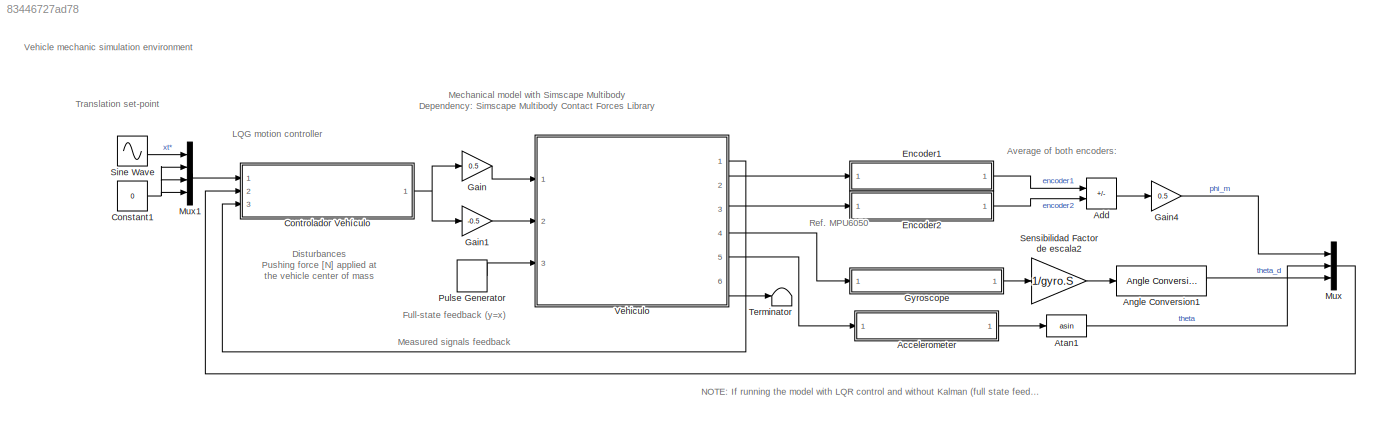
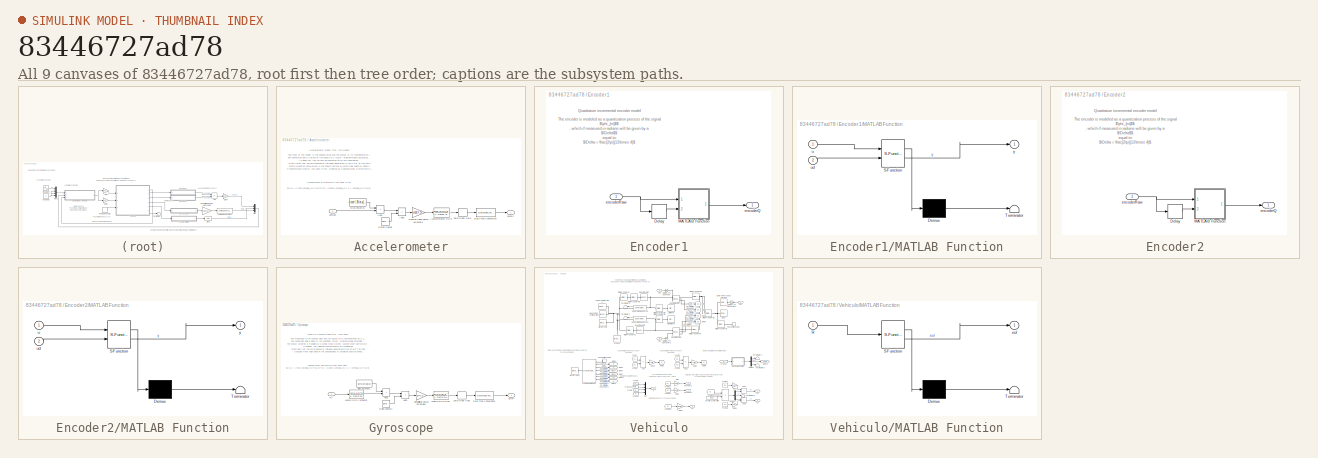
[diagram: thumbnail index - all 9 canvases of the model, root first then tree order]
MODEL slx_83446727ad78
KIND model
CONFIG AbsTol = auto
CONFIG EnableMultiTasking = off
CONFIG FixedStep = auto
CONFIG MaxStep = auto
CONFIG MinStep = auto
CONFIG RelTol = 1e-3
CONFIG SampleTimeConstraint = Unconstrained
CONFIG SolverName = VariableStepAuto
CONFIG StartTime = 0.0
CONFIG StopTime = 18
BLOCK [SubSystem] Accelerometer
  Commented = on
  NameLocation = top
  Ports = [1, 1]
  RequestExecContextInheritance = off
BLOCK [TransferFcn] Accelerometer/Accelerometer DLPF
  Commented = through
  Denominator = [1, 2*accel.DLPF_zeta*accel.DLPF_w, accel.DLPF_w^2]
  Numerator = [accel.DLPF_w^2]
BLOCK [Sum] Accelerometer/Add1
  IconShape = rectangular
  Ports = [2, 1]
BLOCK [Sum] Accelerometer/Add4
  IconShape = rectangular
  Ports = [2, 1]
BLOCK [Constant] Accelerometer/Bias estatico
  Value = accel.Bias(1)
BLOCK [DataTypeConversion] Accelerometer/Data Type Conversion
  Commented = through
  OutDataTypeStr = int16
  RndMeth = Floor
BLOCK [Reference] Accelerometer/Ruido Sensor  REF=simulink/Sources/Band-Limited
White Noise
  Ports = [0, 1]
  SourceBlock = simulink/Sources/Band-Limited\nWhite Noise
  SourceProductBaseCode = SL
  SourceType = Band-Limited White Noise.
BLOCK [Gain] Accelerometer/Sensibilidad Factor de escala
  Gain = accel.S
  NameLocation = top
BLOCK [ZeroOrderHold] Accelerometer/Zero-Order Hold
  Commented = through
  SampleTime = accel.Fs
BLOCK [Outport] Accelerometer/accelX
BLOCK [Inport] Accelerometer/axRaw
BLOCK [Sum] Add
  Commented = on
  IconShape = rectangular
  Inputs = +-
  Ports = [2, 1]
BLOCK [Reference] Angle Conversion1  REF=aerolibconvert2/Angle Conversion
  Commented = on
  Ports = [1, 1]
  SourceBlock = aerolibconvert2/Angle Conversion
  SourceProductBaseCode = AE
  SourceType = Angle Conversion
BLOCK [Trigonometry] Atan1
  Commented = on
  Operator = asin
  Ports = [1, 1]
BLOCK [Constant] Constant1
  Value = 0
BLOCK [ModelReference] Controlador Vehículo
  ModelNameDialog = MotionController.slx
  ModelReferenceVersion = 1.31
  Ports = [3, 1]
BLOCK [SubSystem] Encoder1
  Commented = on
  NameLocation = top
  Ports = [1, 1]
  RequestExecContextInheritance = off
BLOCK [Delay] Encoder1/Delay
  DelayLength = 1
  InputPortMap = u0
  Ports = [1, 1]
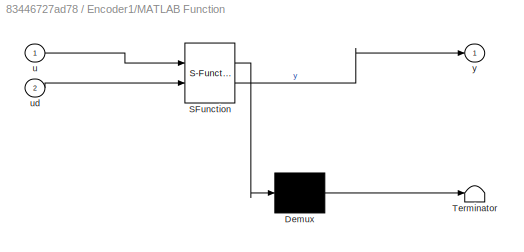
BLOCK [SubSystem] Encoder1/MATLAB Function
  ErrorFcn = Stateflow.Translate.translate
  PermitHierarchicalResolution = ExplicitOnly
  Ports = [2, 1]
  RequestExecContextInheritance = off
  SFBlockType = MATLAB Function
  TreatAsAtomicUnit = on
BLOCK [Demux] Encoder1/MATLAB Function/ Demux 
  Outputs = 1
  Ports = [1, 1]
BLOCK [S-Function] Encoder1/MATLAB Function/ SFunction 
  EnableBusSupport = on
  FunctionName = sf_sfun
  Parameters = QuadratureEncoder
  PortCounts = [2 2]
  Ports = [2, 2]
  SFcnIsStateOwnerBlock = off
  SFunctionDeploymentMode = off
  Tag = Stateflow S-Function 5
BLOCK [Terminator] Encoder1/MATLAB Function/ Terminator 
BLOCK [Inport] Encoder1/MATLAB Function/u
BLOCK [Inport] Encoder1/MATLAB Function/ud
  Port = 2
BLOCK [Outport] Encoder1/MATLAB Function/y
BLOCK [Outport] Encoder1/encoderQ
BLOCK [Inport] Encoder1/encoderRaw
BLOCK [SubSystem] Encoder2
  Commented = on
  NameLocation = top
  Ports = [1, 1]
  RequestExecContextInheritance = off
BLOCK [Delay] Encoder2/Delay
  DelayLength = 1
  InputPortMap = u0
  Ports = [1, 1]
BLOCK [SubSystem] Encoder2/MATLAB Function
  ErrorFcn = Stateflow.Translate.translate
  PermitHierarchicalResolution = ExplicitOnly
  Ports = [2, 1]
  RequestExecContextInheritance = off
  SFBlockType = MATLAB Function
  TreatAsAtomicUnit = on
BLOCK [Demux] Encoder2/MATLAB Function/ Demux 
  Outputs = 1
  Ports = [1, 1]
BLOCK [S-Function] Encoder2/MATLAB Function/ SFunction 
  EnableBusSupport = on
  FunctionName = sf_sfun
  Parameters = QuadratureEncoder
  PortCounts = [2 2]
  Ports = [2, 2]
  SFcnIsStateOwnerBlock = off
  SFunctionDeploymentMode = off
  Tag = Stateflow S-Function 1
BLOCK [Terminator] Encoder2/MATLAB Function/ Terminator 
BLOCK [Inport] Encoder2/MATLAB Function/u
BLOCK [Inport] Encoder2/MATLAB Function/ud
  Port = 2
BLOCK [Outport] Encoder2/MATLAB Function/y
BLOCK [Outport] Encoder2/encoderQ
BLOCK [Inport] Encoder2/encoderRaw
BLOCK [Gain] Gain
  Gain = 0.5
BLOCK [Gain] Gain1
  Gain = -0.5
BLOCK [Gain] Gain4
  Commented = on
  Gain = 0.5
BLOCK [SubSystem] Gyroscope
  Commented = on
  NameLocation = top
  Ports = [1, 1]
  RequestExecContextInheritance = off
BLOCK [Sum] Gyroscope/Add2
  IconShape = rectangular
  Ports = [2, 1]
BLOCK [Sum] Gyroscope/Add5
  IconShape = rectangular
  Ports = [2, 1]
BLOCK [Constant] Gyroscope/Bias estatico1
  Value = gyro.Bias(2)
BLOCK [DataTypeConversion] Gyroscope/Data Type Conversion1
  Commented = through
  OutDataTypeStr = int16
  RndMeth = Floor
BLOCK [TransferFcn] Gyroscope/MEMS Gyro DLPF
  Commented = through
  Denominator = [1, 2*gyro.DLPF_zeta*gyro.DLPF_w, gyro.DLPF_w^2]
  Numerator = [gyro.DLPF_w^2]
BLOCK [TransferFcn] Gyroscope/MEMS Gyro Y dynamic
  Denominator = [1, 2*gyro.zeta*gyro.wnY, gyro.wnY^2]
  Numerator = [gyro.wnY^2]
BLOCK [Reference] Gyroscope/Ruido Sensor1  REF=simulink/Sources/Band-Limited
White Noise
  Ports = [0, 1]
  SourceBlock = simulink/Sources/Band-Limited\nWhite Noise
  SourceProductBaseCode = SL
  SourceType = Band-Limited White Noise.
BLOCK [Gain] Gyroscope/Sensibilidad Factor de escala1
  Gain = gyro.S
BLOCK [ZeroOrderHold] Gyroscope/Zero-Order Hold
  Commented = through
  SampleTime = gyro.Ts
BLOCK [Outport] Gyroscope/gyroY
BLOCK [Inport] Gyroscope/wy
BLOCK [Mux] Mux
  Commented = on
  DisplayOption = bar
  Inputs = 3
  Ports = [3, 1]
BLOCK [Mux] Mux1
  DisplayOption = bar
  Ports = [4, 1]
BLOCK [DiscretePulseGenerator] Pulse Generator
  Amplitude = 0
  Period = 10
  Ports = [0, 1]
  PulseType = Time based
  PulseWidth = 15
BLOCK [Gain] Sensibilidad Factor de escala2
  Commented = on
  Gain = 1/gyro.S
  OutDataTypeStr = double
BLOCK [Sin] Sine Wave
  Amplitude = 0.5
  Frequency = 2*pi/15
  Ports = [0, 1]
  SampleTime = 0
BLOCK [Terminator] Terminator
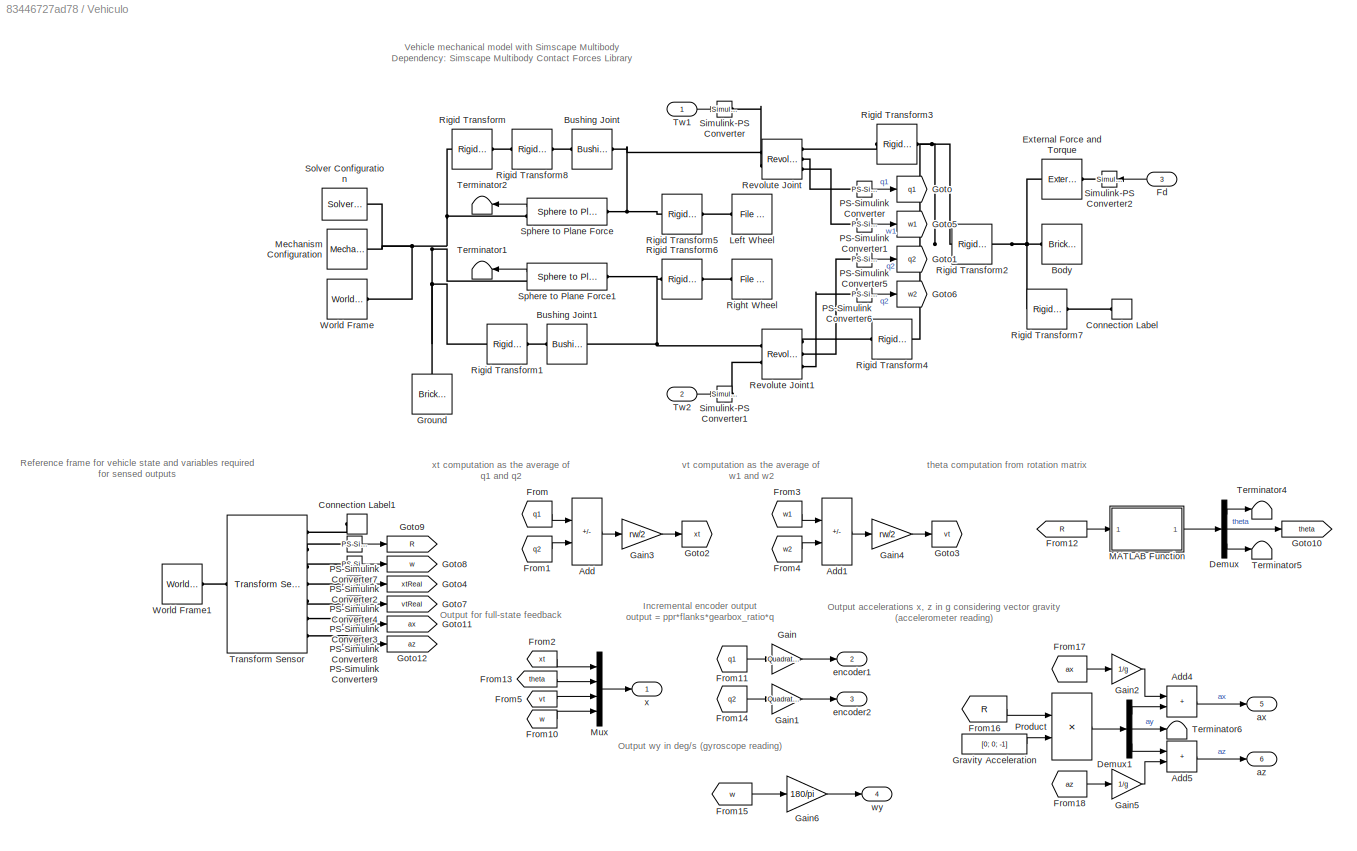
BLOCK [SubSystem] Vehiculo
  Ports = [3, 6]
  RequestExecContextInheritance = off
BLOCK [Sum] Vehiculo/Add
  IconShape = rectangular
  Inputs = +-
  Ports = [2, 1]
BLOCK [Sum] Vehiculo/Add1
  IconShape = rectangular
  Inputs = +-
  Ports = [2, 1]
BLOCK [Sum] Vehiculo/Add4
  IconShape = rectangular
  Ports = [2, 1]
BLOCK [Sum] Vehiculo/Add5
  IconShape = rectangular
  Ports = [2, 1]
BLOCK [Reference] Vehiculo/Body  REF=sm_lib/Body Elements/Brick Solid
  Ports = [0, 0, 0, 0, 0, 0, 1]
  SourceBlock = sm_lib/Body Elements/Brick Solid
  SourceProductBaseCode = MS
  SourceType = Brick Solid
BLOCK [Reference] Vehiculo/Bushing Joint  REF=sm_lib/Joints/Bushing Joint
  Ports = [0, 0, 0, 0, 0, 1, 1]
  SourceBlock = sm_lib/Joints/Bushing Joint
  SourceProductBaseCode = MS
  SourceType = Bushing Joint
BLOCK [Reference] Vehiculo/Bushing Joint1  REF=sm_lib/Joints/Bushing Joint
  Ports = [0, 0, 0, 0, 0, 1, 1]
  SourceBlock = sm_lib/Joints/Bushing Joint
  SourceProductBaseCode = MS
  SourceType = Bushing Joint
BLOCK [ConnectionLabel] Vehiculo/Connection Label
  Label = refState
  Ports = [0, 0, 0, 0, 0, 1]
BLOCK [ConnectionLabel] Vehiculo/Connection Label1
  Label = refState
  Ports = [0, 0, 0, 0, 0, 1]
BLOCK [Demux] Vehiculo/Demux
  Outputs = 3
  Ports = [1, 3]
BLOCK [Demux] Vehiculo/Demux1
  Outputs = 3
  Ports = [1, 3]
BLOCK [Reference] Vehiculo/External Force and Torque  REF=sm_lib/Forces and
Torques/External Force
and Torque
  Ports = [0, 0, 0, 0, 0, 1, 1]
  SourceBlock = sm_lib/Forces and\nTorques/External Force\nand Torque
  SourceProductBaseCode = MS
  SourceType = External Force\nand Torque
BLOCK [Inport] Vehiculo/Fd
  Port = 3
BLOCK [From] Vehiculo/From
  GotoTag = q1
BLOCK [From] Vehiculo/From1
  GotoTag = q2
BLOCK [From] Vehiculo/From10
  GotoTag = w
BLOCK [From] Vehiculo/From11
  GotoTag = q1
BLOCK [From] Vehiculo/From12
  GotoTag = R
BLOCK [From] Vehiculo/From13
  GotoTag = theta
BLOCK [From] Vehiculo/From14
  GotoTag = q2
BLOCK [From] Vehiculo/From15
  GotoTag = w
BLOCK [From] Vehiculo/From16
  GotoTag = R
BLOCK [From] Vehiculo/From17
  GotoTag = ax
BLOCK [From] Vehiculo/From18
  GotoTag = az
BLOCK [From] Vehiculo/From2
  GotoTag = xt
BLOCK [From] Vehiculo/From3
  GotoTag = w1
BLOCK [From] Vehiculo/From4
  GotoTag = w2
BLOCK [From] Vehiculo/From5
  GotoTag = vt
BLOCK [Gain] Vehiculo/Gain
  Gain = QuadratureEncoder.PPR*QuadratureEncoder.ResolutionMult*MotorParameters.gearRatio
BLOCK [Gain] Vehiculo/Gain1
  Gain = QuadratureEncoder.PPR*QuadratureEncoder.ResolutionMult*MotorParameters.gearRatio
BLOCK [Gain] Vehiculo/Gain2
  Gain = 1/g
BLOCK [Gain] Vehiculo/Gain3
  Gain = rw/2
BLOCK [Gain] Vehiculo/Gain4
  Gain = rw/2
BLOCK [Gain] Vehiculo/Gain5
  Gain = 1/g
BLOCK [Gain] Vehiculo/Gain6
  Gain = 180/pi
BLOCK [Goto] Vehiculo/Goto
  GotoTag = q1
BLOCK [Goto] Vehiculo/Goto1
  GotoTag = q2
BLOCK [Goto] Vehiculo/Goto10
  GotoTag = theta
BLOCK [Goto] Vehiculo/Goto11
  GotoTag = ax
BLOCK [Goto] Vehiculo/Goto12
  GotoTag = az
BLOCK [Goto] Vehiculo/Goto2
  GotoTag = xt
BLOCK [Goto] Vehiculo/Goto3
  GotoTag = vt
BLOCK [Goto] Vehiculo/Goto4
  GotoTag = xtReal
BLOCK [Goto] Vehiculo/Goto5
  GotoTag = w1
BLOCK [Goto] Vehiculo/Goto6
  GotoTag = w2
BLOCK [Goto] Vehiculo/Goto7
  GotoTag = vtReal
BLOCK [Goto] Vehiculo/Goto8
  GotoTag = w
BLOCK [Goto] Vehiculo/Goto9
  GotoTag = R
BLOCK [Constant] Vehiculo/Gravity Acceleration
  Value = [0; 0; -1]
BLOCK [Reference] Vehiculo/Ground  REF=sm_lib/Body Elements/Brick Solid
  NameLocation = right
  Ports = [0, 0, 0, 0, 0, 0, 1]
  SourceBlock = sm_lib/Body Elements/Brick Solid
  SourceProductBaseCode = MS
  SourceType = Brick Solid
BLOCK [Reference] Vehiculo/Left Wheel  REF=sm_lib/Body Elements/File Solid
  Ports = [0, 0, 0, 0, 0, 0, 1]
  SourceBlock = sm_lib/Body Elements/File Solid
  SourceProductBaseCode = MS
  SourceType = File Solid
BLOCK [SubSystem] Vehiculo/MATLAB Function
  ErrorFcn = Stateflow.Translate.translate
  PermitHierarchicalResolution = ExplicitOnly
  Ports = [1, 1]
  RequestExecContextInheritance = off
  SFBlockType = MATLAB Function
  TreatAsAtomicUnit = on
BLOCK [Demux] Vehiculo/MATLAB Function/ Demux 
  Outputs = 1
  Ports = [1, 1]
BLOCK [S-Function] Vehiculo/MATLAB Function/ SFunction 
  EnableBusSupport = on
  FunctionName = sf_sfun
  PortCounts = [1 2]
  Ports = [1, 2]
  SFcnIsStateOwnerBlock = off
  SFunctionDeploymentMode = off
  Tag = Stateflow S-Function 2
BLOCK [Terminator] Vehiculo/MATLAB Function/ Terminator 
BLOCK [Inport] Vehiculo/MATLAB Function/R
BLOCK [Outport] Vehiculo/MATLAB Function/eul
BLOCK [Reference] Vehiculo/Mechanism Configuration  REF=sm_lib/Utilities/Mechanism
Configuration
  Ports = [0, 0, 0, 0, 0, 0, 1]
  SourceBlock = sm_lib/Utilities/Mechanism\nConfiguration
  SourceProductBaseCode = MS
  SourceType = Mechanism\nConfiguration
BLOCK [Mux] Vehiculo/Mux
  DisplayOption = bar
  Ports = [4, 1]
BLOCK [Reference] Vehiculo/PS-Simulink Converter  REF=nesl_utility/PS-Simulink
Converter
  Ports = [0, 1, 0, 0, 0, 1]
  SourceBlock = nesl_utility/PS-Simulink\nConverter
  SourceProductBaseCode = SS
  SourceType = PS-Simulink\nConverter
BLOCK [Reference] Vehiculo/PS-Simulink Converter1  REF=nesl_utility/PS-Simulink
Converter
  Ports = [0, 1, 0, 0, 0, 1]
  SourceBlock = nesl_utility/PS-Simulink\nConverter
  SourceProductBaseCode = SS
  SourceType = PS-Simulink\nConverter
BLOCK [Reference] Vehiculo/PS-Simulink Converter2  REF=nesl_utility/PS-Simulink
Converter
  Ports = [0, 1, 0, 0, 0, 1]
  SourceBlock = nesl_utility/PS-Simulink\nConverter
  SourceProductBaseCode = SS
  SourceType = PS-Simulink\nConverter
BLOCK [Reference] Vehiculo/PS-Simulink Converter3  REF=nesl_utility/PS-Simulink
Converter
  Ports = [0, 1, 0, 0, 0, 1]
  SourceBlock = nesl_utility/PS-Simulink\nConverter
  SourceProductBaseCode = SS
  SourceType = PS-Simulink\nConverter
BLOCK [Reference] Vehiculo/PS-Simulink Converter4  REF=nesl_utility/PS-Simulink
Converter
  Ports = [0, 1, 0, 0, 0, 1]
  SourceBlock = nesl_utility/PS-Simulink\nConverter
  SourceProductBaseCode = SS
  SourceType = PS-Simulink\nConverter
BLOCK [Reference] Vehiculo/PS-Simulink Converter5  REF=nesl_utility/PS-Simulink
Converter
  Ports = [0, 1, 0, 0, 0, 1]
  SourceBlock = nesl_utility/PS-Simulink\nConverter
  SourceProductBaseCode = SS
  SourceType = PS-Simulink\nConverter
BLOCK [Reference] Vehiculo/PS-Simulink Converter6  REF=nesl_utility/PS-Simulink
Converter
  Ports = [0, 1, 0, 0, 0, 1]
  SourceBlock = nesl_utility/PS-Simulink\nConverter
  SourceProductBaseCode = SS
  SourceType = PS-Simulink\nConverter
BLOCK [Reference] Vehiculo/PS-Simulink Converter7  REF=nesl_utility/PS-Simulink
Converter
  Ports = [0, 1, 0, 0, 0, 1]
  SourceBlock = nesl_utility/PS-Simulink\nConverter
  SourceProductBaseCode = SS
  SourceType = PS-Simulink\nConverter
BLOCK [Reference] Vehiculo/PS-Simulink Converter8  REF=nesl_utility/PS-Simulink
Converter
  Ports = [0, 1, 0, 0, 0, 1]
  SourceBlock = nesl_utility/PS-Simulink\nConverter
  SourceProductBaseCode = SS
  SourceType = PS-Simulink\nConverter
BLOCK [Reference] Vehiculo/PS-Simulink Converter9  REF=nesl_utility/PS-Simulink
Converter
  Ports = [0, 1, 0, 0, 0, 1]
  SourceBlock = nesl_utility/PS-Simulink\nConverter
  SourceProductBaseCode = SS
  SourceType = PS-Simulink\nConverter
BLOCK [Product] Vehiculo/Product
  Multiplication = Matrix(*)
  Ports = [2, 1]
BLOCK [Reference] Vehiculo/Revolute Joint  REF=sm_lib/Joints/Revolute Joint
  Ports = [0, 0, 0, 0, 0, 2, 3]
  SourceBlock = sm_lib/Joints/Revolute Joint
  SourceProductBaseCode = MS
  SourceType = Revolute Joint
BLOCK [Reference] Vehiculo/Revolute Joint1  REF=sm_lib/Joints/Revolute Joint
  Ports = [0, 0, 0, 0, 0, 2, 3]
  SourceBlock = sm_lib/Joints/Revolute Joint
  SourceProductBaseCode = MS
  SourceType = Revolute Joint
BLOCK [Reference] Vehiculo/Right Wheel  REF=sm_lib/Body Elements/File Solid
  Ports = [0, 0, 0, 0, 0, 0, 1]
  SourceBlock = sm_lib/Body Elements/File Solid
  SourceProductBaseCode = MS
  SourceType = File Solid
BLOCK [Reference] Vehiculo/Rigid Transform  REF=sm_lib/Frames and
Transforms/Rigid
Transform
  Ports = [0, 0, 0, 0, 0, 1, 1]
  SourceBlock = sm_lib/Frames and\nTransforms/Rigid\nTransform
  SourceProductBaseCode = MS
  SourceType = Rigid\nTransform
BLOCK [Reference] Vehiculo/Rigid Transform1  REF=sm_lib/Frames and
Transforms/Rigid
Transform
  Ports = [0, 0, 0, 0, 0, 1, 1]
  SourceBlock = sm_lib/Frames and\nTransforms/Rigid\nTransform
  SourceProductBaseCode = MS
  SourceType = Rigid\nTransform
BLOCK [Reference] Vehiculo/Rigid Transform2  REF=sm_lib/Frames and
Transforms/Rigid
Transform
  Ports = [0, 0, 0, 0, 0, 1, 1]
  SourceBlock = sm_lib/Frames and\nTransforms/Rigid\nTransform
  SourceProductBaseCode = MS
  SourceType = Rigid\nTransform
BLOCK [Reference] Vehiculo/Rigid Transform3  REF=sm_lib/Frames and
Transforms/Rigid
Transform
  Ports = [0, 0, 0, 0, 0, 1, 1]
  SourceBlock = sm_lib/Frames and\nTransforms/Rigid\nTransform
  SourceProductBaseCode = MS
  SourceType = Rigid\nTransform
BLOCK [Reference] Vehiculo/Rigid Transform4  REF=sm_lib/Frames and
Transforms/Rigid
Transform
  Ports = [0, 0, 0, 0, 0, 1, 1]
  SourceBlock = sm_lib/Frames and\nTransforms/Rigid\nTransform
  SourceProductBaseCode = MS
  SourceType = Rigid\nTransform
BLOCK [Reference] Vehiculo/Rigid Transform5  REF=sm_lib/Frames and
Transforms/Rigid
Transform
  Ports = [0, 0, 0, 0, 0, 1, 1]
  SourceBlock = sm_lib/Frames and\nTransforms/Rigid\nTransform
  SourceProductBaseCode = MS
  SourceType = Rigid\nTransform
BLOCK [Reference] Vehiculo/Rigid Transform6  REF=sm_lib/Frames and
Transforms/Rigid
Transform
  Ports = [0, 0, 0, 0, 0, 1, 1]
  SourceBlock = sm_lib/Frames and\nTransforms/Rigid\nTransform
  SourceProductBaseCode = MS
  SourceType = Rigid\nTransform
BLOCK [Reference] Vehiculo/Rigid Transform7  REF=sm_lib/Frames and
Transforms/Rigid
Transform
  Ports = [0, 0, 0, 0, 0, 1, 1]
  SourceBlock = sm_lib/Frames and\nTransforms/Rigid\nTransform
  SourceProductBaseCode = MS
  SourceType = Rigid\nTransform
BLOCK [Reference] Vehiculo/Rigid Transform8  REF=sm_lib/Frames and
Transforms/Rigid
Transform
  Ports = [0, 0, 0, 0, 0, 1, 1]
  SourceBlock = sm_lib/Frames and\nTransforms/Rigid\nTransform
  SourceProductBaseCode = MS
  SourceType = Rigid\nTransform
BLOCK [Reference] Vehiculo/Simulink-PS Converter  REF=nesl_utility/Simulink-PS
Converter
  Ports = [1, 0, 0, 0, 0, 0, 1]
  SourceBlock = nesl_utility/Simulink-PS\nConverter
  SourceProductBaseCode = SS
  SourceType = Simulink-PS\nConverter
BLOCK [Reference] Vehiculo/Simulink-PS Converter1  REF=nesl_utility/Simulink-PS
Converter
  Ports = [1, 0, 0, 0, 0, 0, 1]
  SourceBlock = nesl_utility/Simulink-PS\nConverter
  SourceProductBaseCode = SS
  SourceType = Simulink-PS\nConverter
BLOCK [Reference] Vehiculo/Simulink-PS Converter2  REF=nesl_utility/Simulink-PS
Converter
  Ports = [1, 0, 0, 0, 0, 0, 1]
  SourceBlock = nesl_utility/Simulink-PS\nConverter
  SourceProductBaseCode = SS
  SourceType = Simulink-PS\nConverter
BLOCK [Reference] Vehiculo/Solver Configuration  REF=nesl_utility/Solver
Configuration
  Ports = [0, 0, 0, 0, 0, 0, 1]
  SourceBlock = nesl_utility/Solver\nConfiguration
  SourceProductBaseCode = SS
  SourceType = Solver\nConfiguration
BLOCK [Reference] Vehiculo/Sphere to Plane Force  REF=Contact_Forces_Lib/3D/Sphere to Plane Force
  Ports = [0, 1, 0, 0, 0, 1, 1]
  SourceBlock = Contact_Forces_Lib/3D/Sphere to Plane Force
  SourceProductName = Simscape Multibody Contact Forces Library
  SourceType = Sphere to Plane Force
BLOCK [Reference] Vehiculo/Sphere to Plane Force1  REF=Contact_Forces_Lib/3D/Sphere to Plane Force
  Ports = [0, 1, 0, 0, 0, 1, 1]
  SourceBlock = Contact_Forces_Lib/3D/Sphere to Plane Force
  SourceProductName = Simscape Multibody Contact Forces Library
  SourceType = Sphere to Plane Force
BLOCK [Terminator] Vehiculo/Terminator1
BLOCK [Terminator] Vehiculo/Terminator2
BLOCK [Terminator] Vehiculo/Terminator4
BLOCK [Terminator] Vehiculo/Terminator5
BLOCK [Terminator] Vehiculo/Terminator6
BLOCK [Reference] Vehiculo/Transform Sensor  REF=sm_lib/Frames and
Transforms/Transform
Sensor
  Ports = [0, 0, 0, 0, 0, 1, 7]
  SourceBlock = sm_lib/Frames and\nTransforms/Transform\nSensor
  SourceProductBaseCode = MS
  SourceType = Transform\nSensor
BLOCK [Inport] Vehiculo/Tw1
BLOCK [Inport] Vehiculo/Tw2
  Port = 2
BLOCK [Reference] Vehiculo/World Frame  REF=sm_lib/Frames and
Transforms/World Frame
  Ports = [0, 0, 0, 0, 0, 0, 1]
  SourceBlock = sm_lib/Frames and\nTransforms/World Frame
  SourceProductBaseCode = MS
  SourceType = World Frame
BLOCK [Reference] Vehiculo/World Frame1  REF=sm_lib/Frames and
Transforms/World Frame
  Ports = [0, 0, 0, 0, 0, 0, 1]
  SourceBlock = sm_lib/Frames and\nTransforms/World Frame
  SourceProductBaseCode = MS
  SourceType = World Frame
BLOCK [Outport] Vehiculo/ax
  Port = 5
BLOCK [Outport] Vehiculo/az
  Port = 6
BLOCK [Outport] Vehiculo/encoder1
  Port = 2
BLOCK [Outport] Vehiculo/encoder2
  Port = 3
BLOCK [Outport] Vehiculo/wy
  Port = 4
BLOCK [Outport] Vehiculo/x
ANNOTATION (root): NOTE: If running the model with LQR control and without Kalman (full state feedback) comment sensor models to improve simulation speed.
ANNOTATION (root): Disturbances Pushing force [N] applied at the vehicle center of mass
ANNOTATION (root): LQG motion controller
ANNOTATION (root): Mechanical model with Simscape Multibody Dependency: Simscape Multibody Contact Forces Library
ANNOTATION (root): Translation set-point
ANNOTATION (root): Vehicle mechanic simulation environment
ANNOTATION (root): Average of both encoders:
ANNOTATION (root): Full-state feedback (y=x)
ANNOTATION (root): Measured signals feedback
ANNOTATION (root): Ref. MPU6050
ANNOTATION Accelerometer: The input of the model is the sensed value and the output is its representation as a 16-bit signed integer. The conversion gain is given by the sensitivity factor, programmable according to the selected range. In addition, the following characteristics are considered: - Static bias that can be produced by voltages generated in the PCB or the chip itself. - White Gaussian noise given in the specifi...<+167ch>
ANNOTATION Accelerometer: Accelerometer model (Ref. MPU6050)
ANNOTATION Accelerometer: Second-order Butterworth low-pass filter : $H(s) = \frac{\omega_{N}^{2}}{s^{2} + 2\zeta \omega_{N} s + \omega_{N}^{2}}$
ANNOTATION Encoder1: Quadrature incremental encoder model
ANNOTATION Encoder1: The encoder is modeled as a quantization process of the signal $\phi_{m}$$ , which if measured in radians will be given by a $\Delta$$ equal to: $\Delta = \frac{2\pi}{12\times 4}$ The following quantization function Q is proposed: $Q(\phi_{m}) = \begin{cases} \Delta \cdot \lceil \frac{\phi_{m}}{\Delta} \rceil & \quad \text{si } \dot{\phi}_{m} < 0 \\ \phi_{m} & \quad \text{si } \dot{\phi}_{m} = 0 \...<+105ch>
ANNOTATION Encoder2: Quadrature incremental encoder model
ANNOTATION Encoder2: The encoder is modeled as a quantization process of the signal $\phi_{m}$$ , which if measured in radians will be given by a $\Delta$$ equal to: $\Delta = \frac{2\pi}{12\times 4}$ The following quantization function Q is proposed: $Q(\phi_{m}) = \begin{cases} \Delta \cdot \lceil \frac{\phi_{m}}{\Delta} \rceil & \quad \text{si } \dot{\phi}_{m} < 0 \\ \phi_{m} & \quad \text{si } \dot{\phi}_{m} = 0 \...<+105ch>
ANNOTATION Gyroscope: The model input is the sensed value and the output is its representation as a 16-bit signed integer. The conversion gain is given by the sensitivity factor, programmable according to the chosen range. The sensor dynamics is modeled as a spring mass system (second order Butterworth low-pass filter). In addition, the following characteristics are considered: - Static bias that can be produced by vol...<+291ch>
ANNOTATION Gyroscope: MEMS Gyroscope model (Ref. MPU6050)
ANNOTATION Gyroscope: Second order Butterworth low-pass filter: $H(s) = \frac{\omega_{N}^{2}}{s^{2} + 2\zeta \omega_{N} s + \omega_{N}^{2}}$
ANNOTATION Vehiculo: Vehicle mechanical model with Simscape Multibody Dependency: Simscape Multibody Contact Forces Library
ANNOTATION Vehiculo: Incremental encoder output output = ppr*flanks*gearbox_ratio*q
ANNOTATION Vehiculo: Output accelerations x, z in g considering vector gravity (accelerometer reading)
ANNOTATION Vehiculo: Output for full-state feedback
ANNOTATION Vehiculo: Output wy in deg/s (gyroscope reading)
ANNOTATION Vehiculo: Reference frame for vehicle state and variables required for sensed outputs
ANNOTATION Vehiculo: theta computation from rotation matrix
ANNOTATION Vehiculo: vt computation as the average of w1 and w2
ANNOTATION Vehiculo: xt computation as the average of q1 and q2
LINE Accelerometer/Accelerometer DLPF:1 -> Accelerometer/Zero-Order Hold:1
LINE Accelerometer/Add1:1 -> Accelerometer/Add4:1
LINE Accelerometer/Add4:1 -> Accelerometer/Sensibilidad Factor de escala:1
LINE Accelerometer/Bias estatico:1 -> Accelerometer/Add1:1
LINE Accelerometer/Data Type Conversion:1 -> Accelerometer/accelX:1
LINE Accelerometer/Ruido Sensor:1 -> Accelerometer/Add4:2
LINE Accelerometer/Sensibilidad Factor de escala:1 -> Accelerometer/Accelerometer DLPF:1
LINE Accelerometer/Zero-Order Hold:1 -> Accelerometer/Data Type Conversion:1
LINE Accelerometer/axRaw:1 -> Accelerometer/Add1:2
LINE Accelerometer:1 -> Atan1:1
LINE Add:1 -> Gain4:1
LINE Angle Conversion1:1 -> Mux:3
LINE Atan1:1 -> Mux:2
NET Constant1:1 -> Mux1:2, Mux1:3, Mux1:4
NET Controlador Vehículo:1 -> Gain1:1, Gain:1
LINE Encoder1/Delay:1 -> Encoder1/MATLAB Function:2
LINE Encoder1/MATLAB Function:1 -> Encoder1/encoderQ:1
NET Encoder1/encoderRaw:1 -> Encoder1/Delay:1, Encoder1/MATLAB Function:1
LINE Encoder1:1 -> Add:1
LINE Encoder2/Delay:1 -> Encoder2/MATLAB Function:2
LINE Encoder2/MATLAB Function:1 -> Encoder2/encoderQ:1
NET Encoder2/encoderRaw:1 -> Encoder2/Delay:1, Encoder2/MATLAB Function:1
LINE Encoder2:1 -> Add:2
LINE Gain1:1 -> Vehiculo:2
LINE Gain4:1 -> Mux:1
LINE Gain:1 -> Vehiculo:1
LINE Gyroscope/Add2:1 -> Gyroscope/Add5:1
LINE Gyroscope/Add5:1 -> Gyroscope/Sensibilidad Factor de escala1:1
LINE Gyroscope/Bias estatico1:1 -> Gyroscope/Add2:1
LINE Gyroscope/Data Type Conversion1:1 -> Gyroscope/gyroY:1
LINE Gyroscope/MEMS Gyro DLPF:1 -> Gyroscope/Zero-Order Hold:1
LINE Gyroscope/MEMS Gyro Y dynamic:1 -> Gyroscope/Add2:2
LINE Gyroscope/Ruido Sensor1:1 -> Gyroscope/Add5:2
LINE Gyroscope/Sensibilidad Factor de escala1:1 -> Gyroscope/MEMS Gyro DLPF:1
LINE Gyroscope/Zero-Order Hold:1 -> Gyroscope/Data Type Conversion1:1
LINE Gyroscope/wy:1 -> Gyroscope/MEMS Gyro Y dynamic:1
LINE Gyroscope:1 -> Sensibilidad Factor de escala2:1
LINE Mux1:1 -> Controlador Vehículo:1
LINE Mux:1 -> Controlador Vehículo:2
LINE Pulse Generator:1 -> Vehiculo:3
LINE Sensibilidad Factor de escala2:1 -> Angle Conversion1:1
LINE Sine Wave:1 -> Mux1:1
LINE Vehiculo/Add1:1 -> Vehiculo/Gain4:1
LINE Vehiculo/Add4:1 -> Vehiculo/ax:1
LINE Vehiculo/Add5:1 -> Vehiculo/az:1
LINE Vehiculo/Add:1 -> Vehiculo/Gain3:1
LINE Vehiculo/Demux1:1 -> Vehiculo/Add4:2
LINE Vehiculo/Demux1:2 -> Vehiculo/Terminator6:1
LINE Vehiculo/Demux1:3 -> Vehiculo/Add5:1
LINE Vehiculo/Demux:1 -> Vehiculo/Terminator4:1
LINE Vehiculo/Demux:2 -> Vehiculo/Goto10:1
LINE Vehiculo/Demux:3 -> Vehiculo/Terminator5:1
LINE Vehiculo/Fd:1 -> Vehiculo/Simulink-PS Converter2:1
LINE Vehiculo/From10:1 -> Vehiculo/Mux:4
LINE Vehiculo/From11:1 -> Vehiculo/Gain:1
LINE Vehiculo/From12:1 -> Vehiculo/MATLAB Function:1
LINE Vehiculo/From13:1 -> Vehiculo/Mux:2
LINE Vehiculo/From14:1 -> Vehiculo/Gain1:1
LINE Vehiculo/From15:1 -> Vehiculo/Gain6:1
LINE Vehiculo/From16:1 -> Vehiculo/Product:1
LINE Vehiculo/From17:1 -> Vehiculo/Gain2:1
LINE Vehiculo/From18:1 -> Vehiculo/Gain5:1
LINE Vehiculo/From1:1 -> Vehiculo/Add:2
LINE Vehiculo/From2:1 -> Vehiculo/Mux:1
LINE Vehiculo/From3:1 -> Vehiculo/Add1:1
LINE Vehiculo/From4:1 -> Vehiculo/Add1:2
LINE Vehiculo/From5:1 -> Vehiculo/Mux:3
LINE Vehiculo/From:1 -> Vehiculo/Add:1
LINE Vehiculo/Gain1:1 -> Vehiculo/encoder2:1
LINE Vehiculo/Gain2:1 -> Vehiculo/Add4:1
LINE Vehiculo/Gain3:1 -> Vehiculo/Goto2:1
LINE Vehiculo/Gain4:1 -> Vehiculo/Goto3:1
LINE Vehiculo/Gain5:1 -> Vehiculo/Add5:2
LINE Vehiculo/Gain6:1 -> Vehiculo/wy:1
LINE Vehiculo/Gain:1 -> Vehiculo/encoder1:1
LINE Vehiculo/Gravity Acceleration:1 -> Vehiculo/Product:2
LINE Vehiculo/MATLAB Function:1 -> Vehiculo/Demux:1
LINE Vehiculo/Mux:1 -> Vehiculo/x:1
LINE Vehiculo/PS-Simulink Converter1:1 -> Vehiculo/Goto5:1
LINE Vehiculo/PS-Simulink Converter2:1 -> Vehiculo/Goto8:1
LINE Vehiculo/PS-Simulink Converter3:1 -> Vehiculo/Goto7:1
LINE Vehiculo/PS-Simulink Converter4:1 -> Vehiculo/Goto4:1
LINE Vehiculo/PS-Simulink Converter5:1 -> Vehiculo/Goto1:1
LINE Vehiculo/PS-Simulink Converter6:1 -> Vehiculo/Goto6:1
LINE Vehiculo/PS-Simulink Converter7:1 -> Vehiculo/Goto9:1
LINE Vehiculo/PS-Simulink Converter8:1 -> Vehiculo/Goto11:1
LINE Vehiculo/PS-Simulink Converter9:1 -> Vehiculo/Goto12:1
LINE Vehiculo/PS-Simulink Converter:1 -> Vehiculo/Goto:1
LINE Vehiculo/Product:1 -> Vehiculo/Demux1:1
LINE Vehiculo/Sphere to Plane Force1:1 -> Vehiculo/Terminator1:1
LINE Vehiculo/Sphere to Plane Force:1 -> Vehiculo/Terminator2:1
LINE Vehiculo/Tw1:1 -> Vehiculo/Simulink-PS Converter:1
LINE Vehiculo/Tw2:1 -> Vehiculo/Simulink-PS Converter1:1
LINE Vehiculo:1 -> Controlador Vehículo:3
LINE Vehiculo:2 -> Encoder1:1
LINE Vehiculo:3 -> Encoder2:1
LINE Vehiculo:4 -> Gyroscope:1
LINE Vehiculo:5 -> Accelerometer:1
LINE Vehiculo:6 -> Terminator:1
PNET net1: Vehiculo/Body:RConn1 -- Vehiculo/External Force and Torque:RConn1 -- Vehiculo/Rigid Transform2:LConn1 -- Vehiculo/Rigid Transform7:LConn1
PLINE Vehiculo/Bushing Joint1:LConn1 -- Vehiculo/Rigid Transform1:LConn1
PNET net2: Vehiculo/Bushing Joint1:RConn1 -- Vehiculo/Revolute Joint1:LConn1 -- Vehiculo/Rigid Transform6:RConn1 -- Vehiculo/Sphere to Plane Force1:LConn1
PLINE Vehiculo/Bushing Joint:LConn1 -- Vehiculo/Rigid Transform8:LConn1
PNET net3: Vehiculo/Bushing Joint:RConn1 -- Vehiculo/Revolute Joint:LConn1 -- Vehiculo/Rigid Transform5:RConn1 -- Vehiculo/Sphere to Plane Force:LConn1
PLINE Vehiculo/Connection Label1:LConn1 -- Vehiculo/Transform Sensor:RConn1
PLINE Vehiculo/Connection Label:LConn1 -- Vehiculo/Rigid Transform7:RConn1
PLINE Vehiculo/External Force and Torque:LConn1 -- Vehiculo/Simulink-PS Converter2:RConn1
PNET net4: Vehiculo/Ground:RConn1 -- Vehiculo/Mechanism Configuration:RConn1 -- Vehiculo/Rigid Transform1:RConn1 -- Vehiculo/Rigid Transform:RConn1 -- Vehiculo/Solver Configuration:RConn1 -- Vehiculo/Sphere to Plane Force1:RConn1 -- Vehiculo/Sphere to Plane Force:RConn1 -- Vehiculo/World Frame:RConn1
PLINE Vehiculo/Left Wheel:RConn1 -- Vehiculo/Rigid Transform5:LConn1
PLINE Vehiculo/PS-Simulink Converter1:LConn1 -- Vehiculo/Revolute Joint:RConn3
PLINE Vehiculo/PS-Simulink Converter2:LConn1 -- Vehiculo/Transform Sensor:RConn3
PLINE Vehiculo/PS-Simulink Converter3:LConn1 -- Vehiculo/Transform Sensor:RConn5
PLINE Vehiculo/PS-Simulink Converter4:LConn1 -- Vehiculo/Transform Sensor:RConn4
PLINE Vehiculo/PS-Simulink Converter5:LConn1 -- Vehiculo/Revolute Joint1:RConn2
PLINE Vehiculo/PS-Simulink Converter6:LConn1 -- Vehiculo/Revolute Joint1:RConn3
PLINE Vehiculo/PS-Simulink Converter7:LConn1 -- Vehiculo/Transform Sensor:RConn2
PLINE Vehiculo/PS-Simulink Converter8:LConn1 -- Vehiculo/Transform Sensor:RConn6
PLINE Vehiculo/PS-Simulink Converter9:LConn1 -- Vehiculo/Transform Sensor:RConn7
PLINE Vehiculo/PS-Simulink Converter:LConn1 -- Vehiculo/Revolute Joint:RConn2
PLINE Vehiculo/Revolute Joint1:LConn2 -- Vehiculo/Simulink-PS Converter1:RConn1
PLINE Vehiculo/Revolute Joint1:RConn1 -- Vehiculo/Rigid Transform4:RConn1
PLINE Vehiculo/Revolute Joint:LConn2 -- Vehiculo/Simulink-PS Converter:RConn1
PLINE Vehiculo/Revolute Joint:RConn1 -- Vehiculo/Rigid Transform3:RConn1
PLINE Vehiculo/Right Wheel:RConn1 -- Vehiculo/Rigid Transform6:LConn1
PNET net5: Vehiculo/Rigid Transform2:RConn1 -- Vehiculo/Rigid Transform3:LConn1 -- Vehiculo/Rigid Transform4:LConn1
PLINE Vehiculo/Rigid Transform8:RConn1 -- Vehiculo/Rigid Transform:LConn1
PLINE Vehiculo/Transform Sensor:LConn1 -- Vehiculo/World Frame1:RConn1
note: NET lines group one-source signal fan-out (src -> all destinations, sorted); 1:1 wires keep LINE; PNET lines group multi-terminal physical nets as a canonical sorted terminal list (undirected conserving connections); 2-terminal nets keep the pairwise PLINE form
CHART Vehiculo/MATLAB Function states=1 transitions=1
  STATE_LABEL 'eML_blk_kernel()'
  STATE_LABEL 'SCRIPT:\nfunction eul = rotm2eul(R)\n\neul = rotm2eul(R);\n'
CHART Encoder1/MATLAB Function states=1 transitions=1
  STATE_LABEL 'eML_blk_kernel()'
  STATE_LABEL 'SCRIPT:\nfunction y = Q(u, ud, QuadratureEncoder)\ndelta = 2*pi/(QuadratureEncoder.PPR*QuadratureEncoder.ResolutionMult);\ny = u/delta;\ndiff = u - ud;\nif diff < 0\n    y = ceil(y);\nelseif diff > 0\n    y = floor(y);\nend\ny = y*delta;\n'
CHART Encoder2/MATLAB Function states=1 transitions=1
  STATE_LABEL 'eML_blk_kernel()'
  STATE_LABEL 'SCRIPT:\nfunction y = Q(u, ud, QuadratureEncoder)\ndelta = 2*pi/(QuadratureEncoder.PPR*QuadratureEncoder.ResolutionMult);\ny = u/delta;\ndiff = u - ud;\nif diff < 0\n    y = ceil(y);\nelseif diff > 0\n    y = floor(y);\nend\ny = y*delta;\n'
CHART  states=0 transitions=0
CHART  states=0 transitions=0
CHART  states=0 transitions=0
